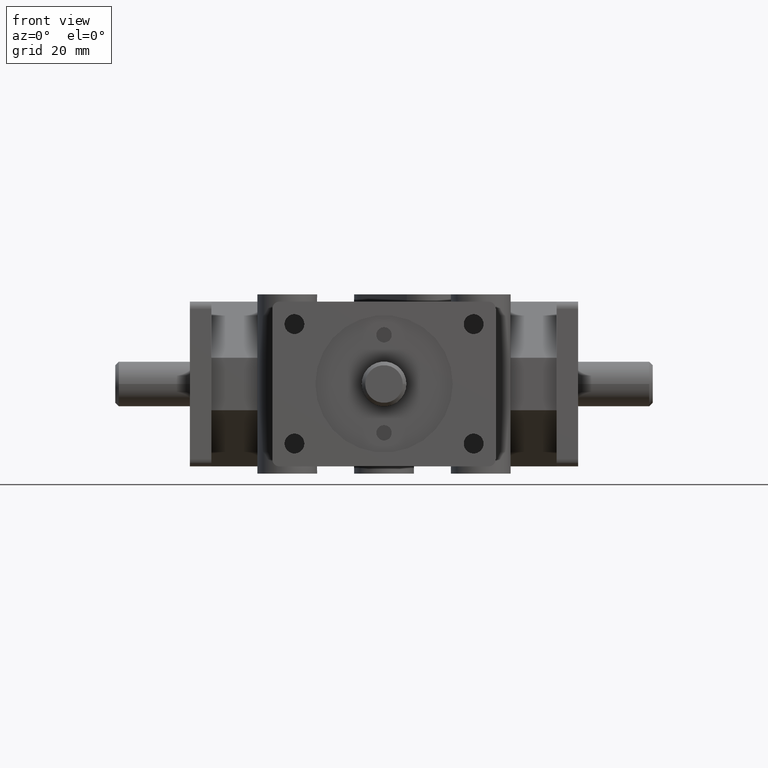
[diagram: clean part render]
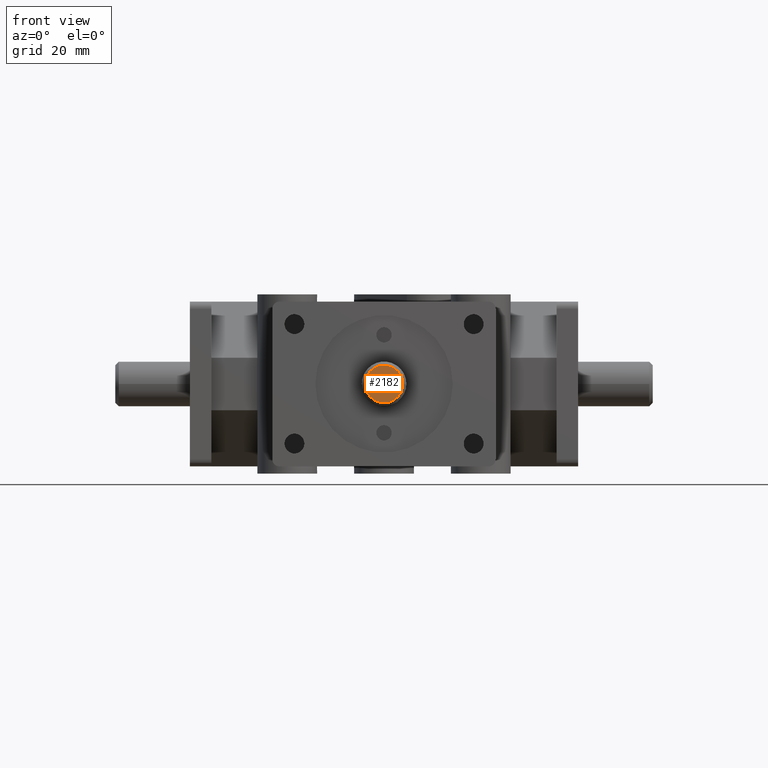
[diagram: same view with one face highlighted and labeled with its STEP entity id]
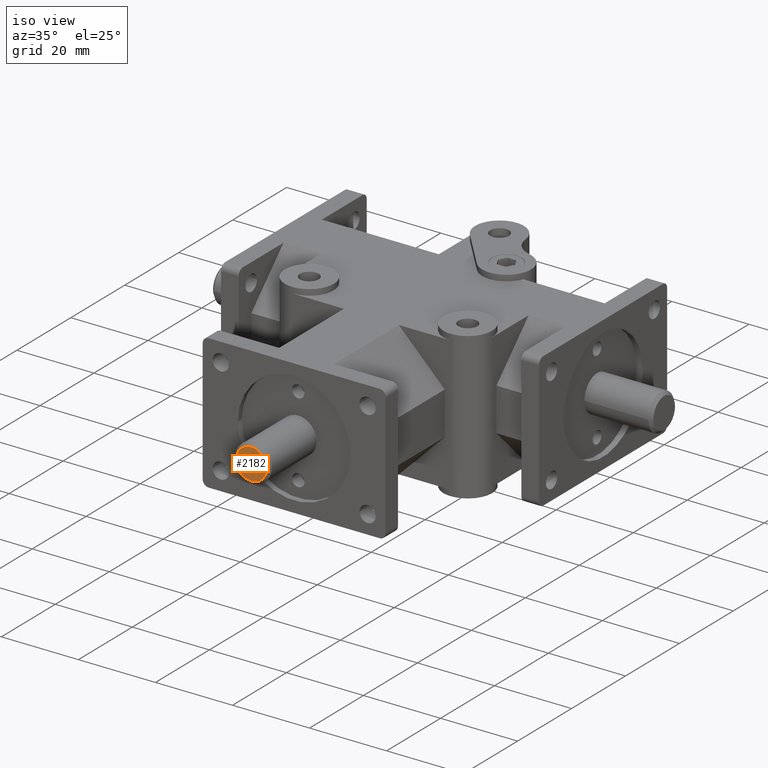
[diagram: same view with one face highlighted and labeled with its STEP entity id]
A machine part, front view. The second image highlights one B-rep face of the part: STEP entity #2182.
A second angle (iso view) of the same face is appended — the face is thin or edge-on in the first view.
In plain terms, the highlighted planar face has unit normal (0, 1, 0).
Its self-contained STEP definition (entity closure, byte-faithful):
#129=PLANE('',#2420);
#244=FACE_OUTER_BOUND('',#403,.T.);
#403=EDGE_LOOP('',(#1981));
#518=CIRCLE('',#2418,0.1575);
#1109=VERTEX_POINT('',#3683);
#1406=EDGE_CURVE('',#1109,#1109,#518,.T.);
#1981=ORIENTED_EDGE('',*,*,#1406,.F.);
#2182=ADVANCED_FACE('',(#244),#129,.F.);
#2418=AXIS2_PLACEMENT_3D('',#3685,#3049,#3050);
#2420=AXIS2_PLACEMENT_3D('',#3688,#3054,#3055);
#3049=DIRECTION('center_axis',(0.,1.,0.));
#3050=DIRECTION('ref_axis',(-1.,0.,0.));
#3054=DIRECTION('center_axis',(0.,1.,0.));
#3055=DIRECTION('ref_axis',(0.,0.,-1.));
#3683=CARTESIAN_POINT('',(0.1575,-0.625,-1.92875500727024E-17));
#3685=CARTESIAN_POINT('Origin',(0.,-0.625,0.));
#3688=CARTESIAN_POINT('Origin',(0.0170454545454545,-0.625,-4.17479438803083E-18));